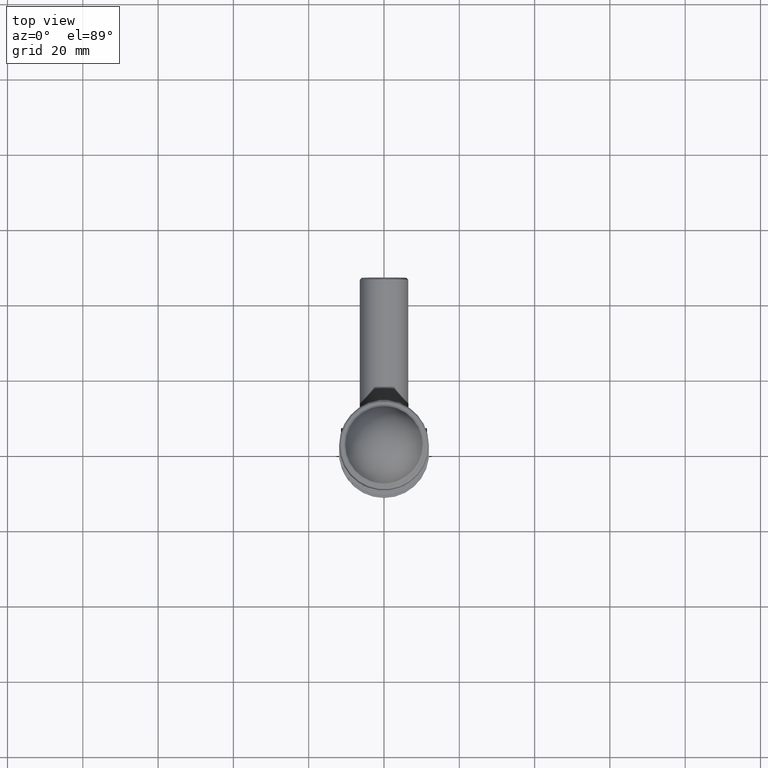
[diagram: clean part render]
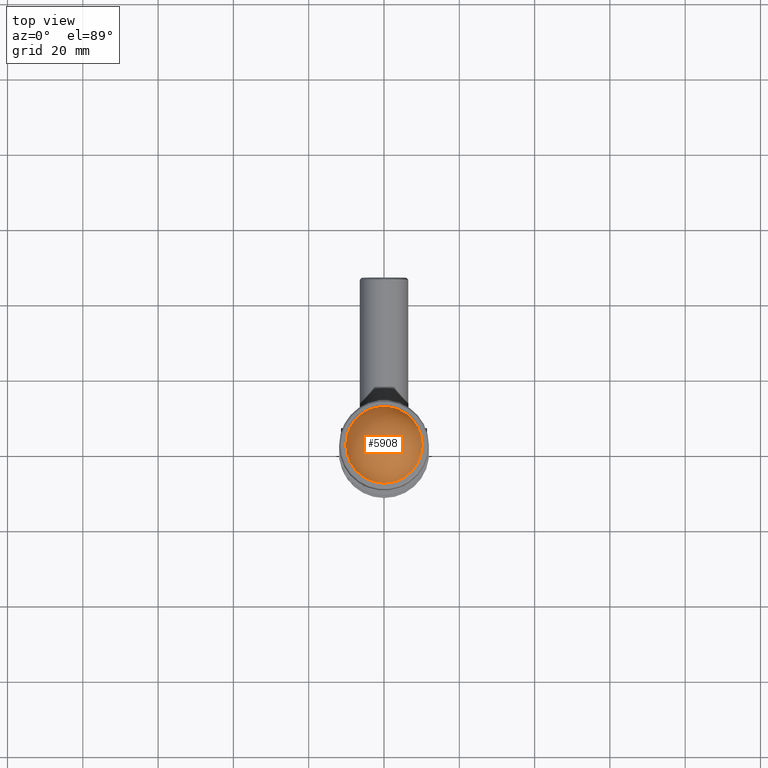
[diagram: same view with one face highlighted and labeled with its STEP entity id]
A machine part, top view. The second image highlights one B-rep face of the part: STEP entity #5908.
In plain terms, the highlighted spherical surface has radius 10.3368 mm.
Its self-contained STEP definition (entity closure, byte-faithful):
#551 = SPHERICAL_SURFACE ( 'NONE', #1836, 10.33680555555555358 ) ;
#1836 = AXIS2_PLACEMENT_3D ( 'NONE', #3268, #11448, #6933 ) ;
#2518 = EDGE_LOOP ( 'NONE', ( #14295 ) ) ;
#3268 = CARTESIAN_POINT ( 'NONE',  ( 2.524354896707237777E-26, 10.66319444444444997, 0.000000000000000000 ) ) ;
#5908 = ADVANCED_FACE ( 'NONE', ( #8602 ), #551, .T. ) ;
#6610 = EDGE_CURVE ( 'NONE', #15142, #15142, #11553, .T. ) ;
#6933 = DIRECTION ( 'NONE',  ( -1.000000000000000000, 0.000000000000000000, 0.000000000000000000 ) ) ;
#8602 = FACE_OUTER_BOUND ( 'NONE', #2518, .T. ) ;
#10044 = CARTESIAN_POINT ( 'NONE',  ( 10.15925804269309474, 12.57081734096772152, 0.000000000000000000 ) ) ;
#11014 = DIRECTION ( 'NONE',  ( -1.444893032729974187E-24, 1.000000000000000000, -0.000000000000000000 ) ) ;
#11448 = DIRECTION ( 'NONE',  ( 0.000000000000000000, 0.000000000000000000, 1.000000000000000000 ) ) ;
#11553 = CIRCLE ( 'NONE', #13655, 10.15925804269309474 ) ;
#12084 = DIRECTION ( 'NONE',  ( 1.000000000000000000, 0.000000000000000000, 0.000000000000000000 ) ) ;
#13655 = AXIS2_PLACEMENT_3D ( 'NONE', #14421, #11014, #12084 ) ;
#14295 = ORIENTED_EDGE ( 'NONE', *, *, #6610, .T. ) ;
#14421 = CARTESIAN_POINT ( 'NONE',  ( -2.731067483295574030E-24, 12.57081734096772152, 0.000000000000000000 ) ) ;
#15142 = VERTEX_POINT ( 'NONE', #10044 ) ;